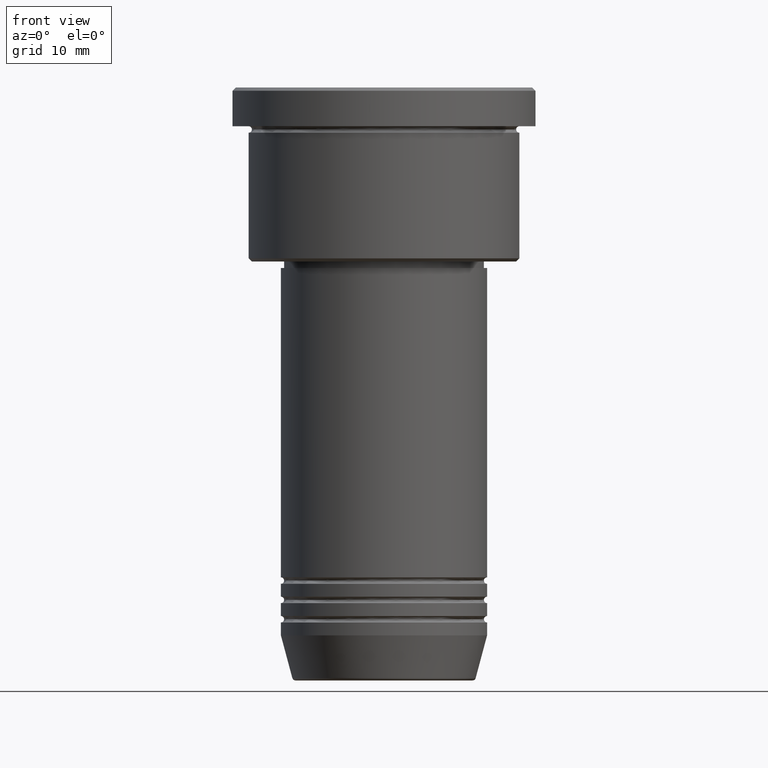
[diagram: clean part render]
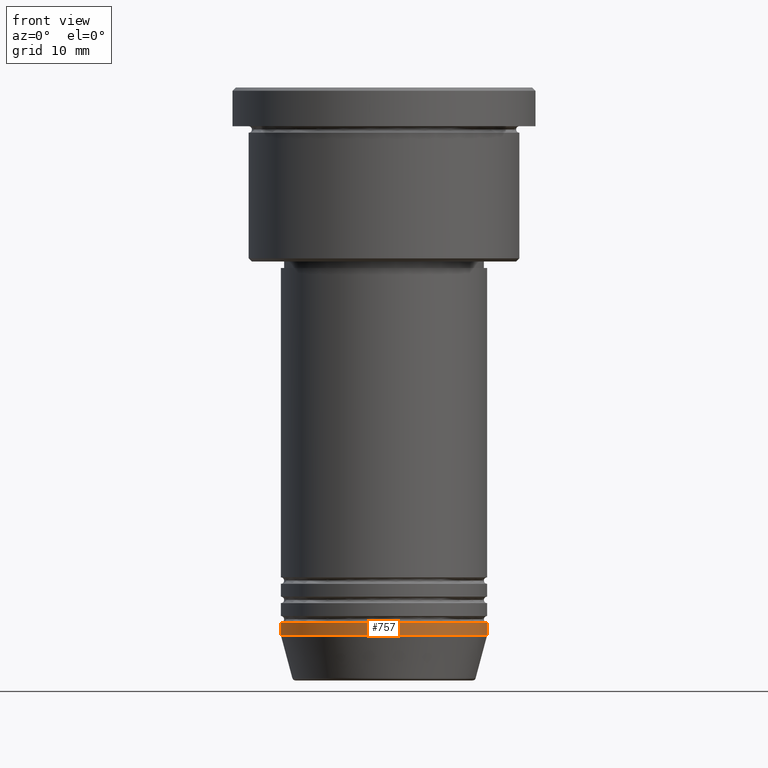
[diagram: same view with one face highlighted and labeled with its STEP entity id]
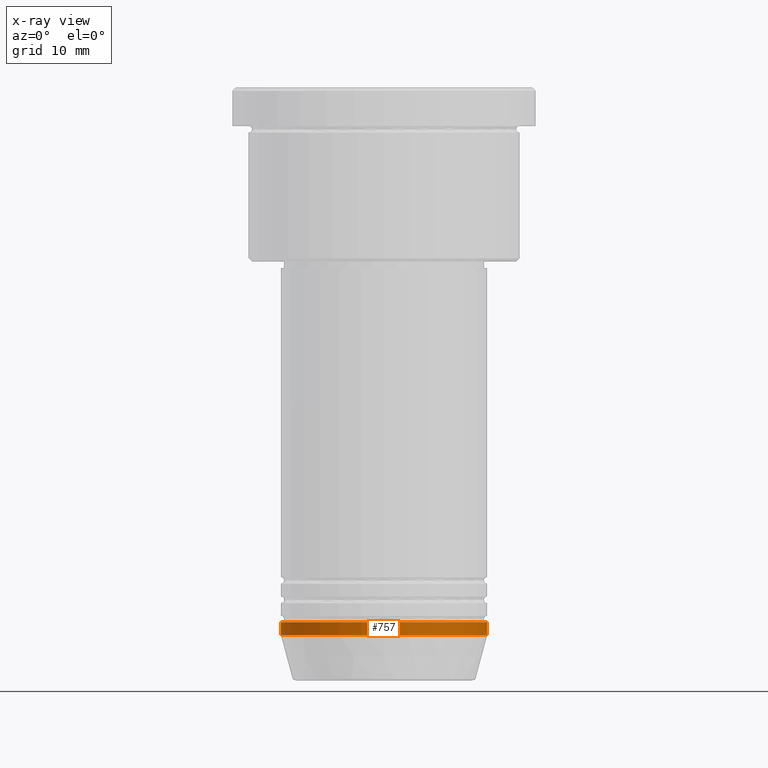
[diagram: x-ray of the same camera — body ghosted, the highlighted face saturated]
A machine part, front view. The second image highlights one B-rep face of the part: STEP entity #757.
The next image is the same camera in x-ray: the body ghosted, the highlighted face saturated — about 0% of this face is hidden behind the body in this view.
In plain terms, the highlighted cylindrical surface (partial cylindrical patch) has radius 16 mm, axis along (-0, -0, 1).
Its self-contained STEP definition (entity closure, byte-faithful):
#16 = ORIENTED_EDGE ( 'NONE', *, *, #190, .F. ) ;
#62 = VERTEX_POINT ( 'NONE', #1044 ) ;
#67 = CYLINDRICAL_SURFACE ( 'NONE', #1015, 16.00000000000000000 ) ;
#81 = VECTOR ( 'NONE', #706, 1000.000000000000000 ) ;
#189 = ORIENTED_EDGE ( 'NONE', *, *, #882, .T. ) ;
#190 = EDGE_CURVE ( 'NONE', #62, #505, #502, .T. ) ;
#258 = DIRECTION ( 'NONE',  ( -0.000000000000000000, -0.000000000000000000, 1.000000000000000000 ) ) ;
#277 = ORIENTED_EDGE ( 'NONE', *, *, #1010, .T. ) ;
#281 = LINE ( 'NONE', #633, #81 ) ;
#296 = EDGE_LOOP ( 'NONE', ( #999, #277, #189, #16 ) ) ;
#302 = AXIS2_PLACEMENT_3D ( 'NONE', #335, #258, #1151 ) ;
#305 = VECTOR ( 'NONE', #821, 1000.000000000000000 ) ;
#335 = CARTESIAN_POINT ( 'NONE',  ( 0.000000000000000000, 0.000000000000000000, -82.99999999999998579 ) ) ;
#357 = LINE ( 'NONE', #916, #305 ) ;
#372 = DIRECTION ( 'NONE',  ( -0.000000000000000000, -0.000000000000000000, 1.000000000000000000 ) ) ;
#388 = CARTESIAN_POINT ( 'NONE',  ( 16.00000000000000000, 0.000000000000000000, -84.99999999999998579 ) ) ;
#473 = VERTEX_POINT ( 'NONE', #388 ) ;
#479 = VERTEX_POINT ( 'NONE', #1030 ) ;
#493 = DIRECTION ( 'NONE',  ( -0.000000000000000000, -0.000000000000000000, 1.000000000000000000 ) ) ;
#502 = CIRCLE ( 'NONE', #302, 16.00000000000000000 ) ;
#505 = VERTEX_POINT ( 'NONE', #748 ) ;
#585 = CARTESIAN_POINT ( 'NONE',  ( 0.000000000000000000, 0.000000000000000000, -84.99999999999998579 ) ) ;
#633 = CARTESIAN_POINT ( 'NONE',  ( 16.00000000000000000, 0.000000000000000000, 0.000000000000000000 ) ) ;
#655 = CIRCLE ( 'NONE', #945, 16.00000000000000000 ) ;
#669 = DIRECTION ( 'NONE',  ( 1.000000000000000000, 0.000000000000000000, 0.000000000000000000 ) ) ;
#706 = DIRECTION ( 'NONE',  ( -0.000000000000000000, -0.000000000000000000, 1.000000000000000000 ) ) ;
#748 = CARTESIAN_POINT ( 'NONE',  ( 16.00000000000000000, 0.000000000000000000, -82.99999999999998579 ) ) ;
#757 = ADVANCED_FACE ( 'NONE', ( #894 ), #67, .T. ) ;
#821 = DIRECTION ( 'NONE',  ( -0.000000000000000000, -0.000000000000000000, 1.000000000000000000 ) ) ;
#882 = EDGE_CURVE ( 'NONE', #473, #505, #281, .T. ) ;
#894 = FACE_OUTER_BOUND ( 'NONE', #296, .T. ) ;
#899 = EDGE_CURVE ( 'NONE', #479, #62, #357, .T. ) ;
#916 = CARTESIAN_POINT ( 'NONE',  ( -16.00000000000000000, 1.959434878635765131E-15, 0.000000000000000000 ) ) ;
#945 = AXIS2_PLACEMENT_3D ( 'NONE', #585, #493, #669 ) ;
#999 = ORIENTED_EDGE ( 'NONE', *, *, #899, .F. ) ;
#1010 = EDGE_CURVE ( 'NONE', #479, #473, #655, .T. ) ;
#1015 = AXIS2_PLACEMENT_3D ( 'NONE', #1049, #372, #1100 ) ;
#1030 = CARTESIAN_POINT ( 'NONE',  ( -16.00000000000000000, 1.959434878635765131E-15, -84.99999999999998579 ) ) ;
#1044 = CARTESIAN_POINT ( 'NONE',  ( -16.00000000000000000, 1.959434878635765131E-15, -82.99999999999998579 ) ) ;
#1049 = CARTESIAN_POINT ( 'NONE',  ( 0.000000000000000000, 0.000000000000000000, 0.000000000000000000 ) ) ;
#1100 = DIRECTION ( 'NONE',  ( 1.000000000000000000, 0.000000000000000000, 0.000000000000000000 ) ) ;
#1151 = DIRECTION ( 'NONE',  ( 1.000000000000000000, 0.000000000000000000, 0.000000000000000000 ) ) ;